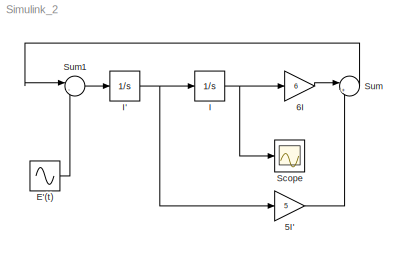
MODEL Simulink_2
KIND model
BLOCK [Gain] 5I'
  Gain = 5
  SID = 1
BLOCK [Gain] 6I
  Gain = 6
  SID = 2
BLOCK [Sin] E'(t)
  Amplitude = 10
  Ports = [0, 1]
  SID = 3
  SampleTime = 0
BLOCK [Integrator] I
  InitialCondition = 1
  Ports = [1, 1]
  SID = 4
BLOCK [Integrator] I'
  InitialCondition = 5
  Ports = [1, 1]
  SID = 5
BLOCK [Scope] Scope
  Floating = off
  NumInputPorts = 1
  Ports = [1]
  SID = 6
  ScopeSpecificationString = Simulink.scopes.TimeScopeBlockCfg('CurrentConfiguration', extmgr.ConfigurationSet(extmgr.Configuration('Core','General UI',true),extmgr.Configuration('Core','Source UI',true),extmgr.Configuration('Sources','WiredSimulink',true,'DataLoggingSaveFormat','StructureWithTime','DataLoggingLimitDataPoints',true,'DataLoggingDecimation','1','DataLoggingDecimateData',true),extmgr.Configuration('Visuals','Tim...<+872ch>
BLOCK [Sum] Sum
  IconShape = round
  InputSameDT = off
  Inputs = |++
  OutDataTypeStr = Inherit: Inherit via internal rule
  Ports = [2, 1]
  SID = 7
BLOCK [Sum] Sum1
  IconShape = round
  InputSameDT = off
  Inputs = |-+
  OutDataTypeStr = Inherit: Inherit via internal rule
  Ports = [2, 1]
  SID = 8
LINE 5I':1 -> Sum:2
LINE 6I:1 -> Sum:1
LINE E'(t):1 -> Sum1:2
NET I':1 -> 5I':1, I:1
NET I:1 -> 6I:1, Scope:1
LINE Sum1:1 -> I':1
LINE Sum:1 -> Sum1:1
note: NET lines group one-source signal fan-out (src -> all destinations, sorted); 1:1 wires keep LINE
